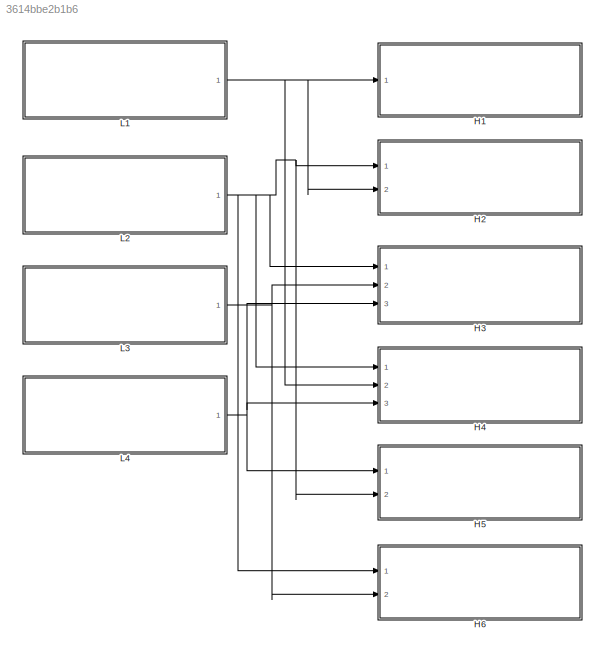
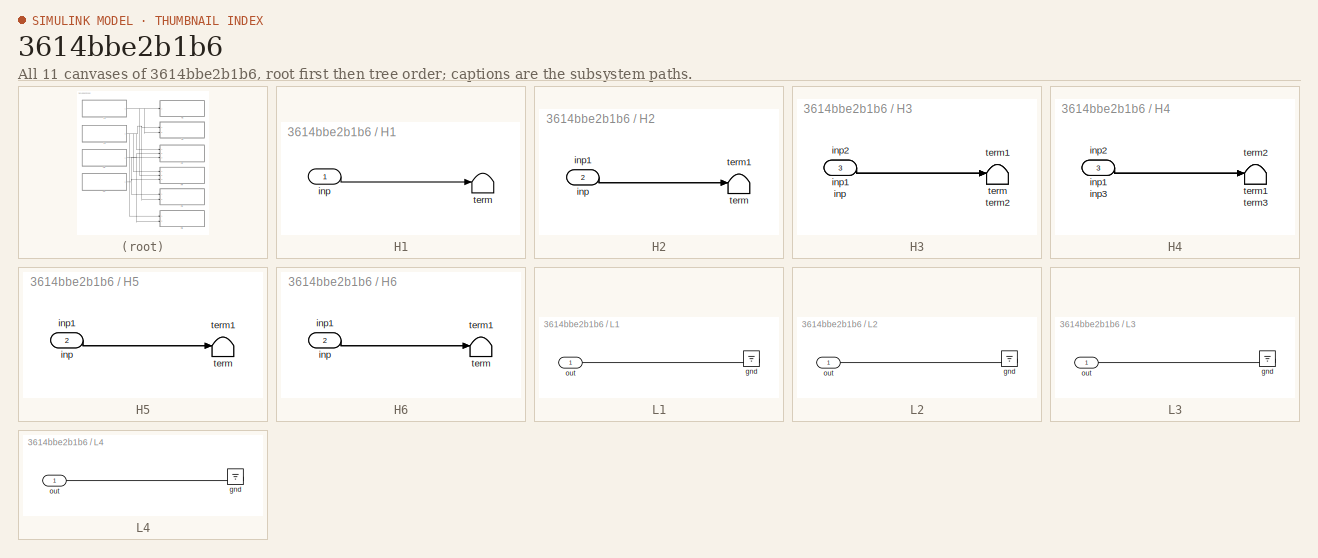
[diagram: thumbnail index - all 11 canvases of the model, root first then tree order]
MODEL slx_3614bbe2b1b6
KIND model
CONFIG AbsTol = auto
CONFIG EnableMultiTasking = off
CONFIG FixedStep = auto
CONFIG MaxStep = auto
CONFIG MinStep = auto
CONFIG RelTol = 1e-3
CONFIG SampleTimeConstraint = Unconstrained
CONFIG Solver = VariableStepAuto
CONFIG SolverName = VariableStepAuto
CONFIG StartTime = 0.0
CONFIG StopTime = 10.0
BLOCK [SubSystem] H1
  NameLocation = top
  Ports = [1]
  RTWFcnNameOpts = Use subsystem name
  RTWFileNameOpts = Use function name
  RTWSystemCode = Reusable function
  RequestExecContextInheritance = off
  TreatAsAtomicUnit = on
BLOCK [Inport] H1/inp
BLOCK [Terminator] H1/term
BLOCK [SubSystem] H2
  NameLocation = top
  Ports = [2]
  RTWFcnNameOpts = Use subsystem name
  RTWFileNameOpts = Use function name
  RTWSystemCode = Reusable function
  RequestExecContextInheritance = off
  TreatAsAtomicUnit = on
BLOCK [Inport] H2/inp
BLOCK [Inport] H2/inp1
  Port = 2
BLOCK [Terminator] H2/term
BLOCK [Terminator] H2/term1
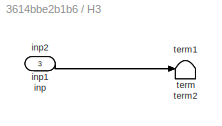
BLOCK [SubSystem] H3
  NameLocation = top
  Ports = [3]
  RTWFcnNameOpts = Use subsystem name
  RTWFileNameOpts = Use function name
  RTWSystemCode = Reusable function
  RequestExecContextInheritance = off
  TreatAsAtomicUnit = on
BLOCK [Inport] H3/inp
  Port = 3
BLOCK [Inport] H3/inp1
BLOCK [Inport] H3/inp2
  Port = 2
BLOCK [Terminator] H3/term
BLOCK [Terminator] H3/term1
BLOCK [Terminator] H3/term2
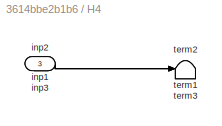
BLOCK [SubSystem] H4
  NameLocation = top
  Ports = [3]
  RTWFcnNameOpts = Use subsystem name
  RTWFileNameOpts = Use function name
  RTWSystemCode = Reusable function
  RequestExecContextInheritance = off
  TreatAsAtomicUnit = on
BLOCK [Inport] H4/inp1
BLOCK [Inport] H4/inp2
  Port = 2
BLOCK [Inport] H4/inp3
  Port = 3
BLOCK [Terminator] H4/term1
BLOCK [Terminator] H4/term2
BLOCK [Terminator] H4/term3
BLOCK [SubSystem] H5
  NameLocation = top
  Ports = [2]
  RTWFcnNameOpts = Use subsystem name
  RTWFileNameOpts = Use function name
  RTWSystemCode = Reusable function
  RequestExecContextInheritance = off
  TreatAsAtomicUnit = on
BLOCK [Inport] H5/inp
BLOCK [Inport] H5/inp1
  Port = 2
BLOCK [Terminator] H5/term
BLOCK [Terminator] H5/term1
BLOCK [SubSystem] H6
  NameLocation = top
  Ports = [2]
  RTWFcnNameOpts = Use subsystem name
  RTWFileNameOpts = Use function name
  RTWSystemCode = Reusable function
  RequestExecContextInheritance = off
  TreatAsAtomicUnit = on
BLOCK [Inport] H6/inp
BLOCK [Inport] H6/inp1
  Port = 2
BLOCK [Terminator] H6/term
BLOCK [Terminator] H6/term1
BLOCK [SubSystem] L1
  AttributesFormatString = CAT %<LOSSCAT>
  NameLocation = top
  Ports = [0, 1]
  RTWFcnNameOpts = Use subsystem name
  RTWFileNameOpts = Use function name
  RTWSystemCode = Reusable function
  RequestExecContextInheritance = off
  TreatAsAtomicUnit = on
BLOCK [Ground] L1/gnd
BLOCK [Outport] L1/out
BLOCK [SubSystem] L2
  AttributesFormatString = CAT %<LOSSCAT>
  NameLocation = top
  Ports = [0, 1]
  RTWFcnNameOpts = Use subsystem name
  RTWFileNameOpts = Use function name
  RTWSystemCode = Reusable function
  RequestExecContextInheritance = off
  TreatAsAtomicUnit = on
BLOCK [Ground] L2/gnd
BLOCK [Outport] L2/out
BLOCK [SubSystem] L3
  AttributesFormatString = CAT %<LOSSCAT>
  NameLocation = top
  Ports = [0, 1]
  RTWFcnNameOpts = Use subsystem name
  RTWFileNameOpts = Use function name
  RTWSystemCode = Reusable function
  RequestExecContextInheritance = off
  TreatAsAtomicUnit = on
BLOCK [Ground] L3/gnd
BLOCK [Outport] L3/out
BLOCK [SubSystem] L4
  AttributesFormatString = CAT %<LOSSCAT>
  NameLocation = top
  Ports = [0, 1]
  RTWFcnNameOpts = Use subsystem name
  RTWFileNameOpts = Use function name
  RTWSystemCode = Reusable function
  RequestExecContextInheritance = off
  TreatAsAtomicUnit = on
BLOCK [Ground] L4/gnd
BLOCK [Outport] L4/out
LINE H1/inp:1 -> H1/term:1
LINE H2/inp1:1 -> H2/term1:1
LINE H2/inp:1 -> H2/term:1
LINE H3/inp1:1 -> H3/term1:1
LINE H3/inp2:1 -> H3/term2:1
LINE H3/inp:1 -> H3/term:1
LINE H4/inp1:1 -> H4/term1:1
LINE H4/inp2:1 -> H4/term2:1
LINE H4/inp3:1 -> H4/term3:1
LINE H5/inp1:1 -> H5/term1:1
LINE H5/inp:1 -> H5/term:1
LINE H6/inp1:1 -> H6/term1:1
LINE H6/inp:1 -> H6/term:1
LINE L1/gnd:1 -> L1/out:1
NET L1:1 -> H1:1, H2:2, H4:2
LINE L2/gnd:1 -> L2/out:1
NET L2:1 -> H2:1, H3:1, H4:1, H5:2, H6:1
LINE L3/gnd:1 -> L3/out:1
NET L3:1 -> H3:2, H6:2
LINE L4/gnd:1 -> L4/out:1
NET L4:1 -> H3:3, H4:3, H5:1
note: NET lines group one-source signal fan-out (src -> all destinations, sorted); 1:1 wires keep LINE
